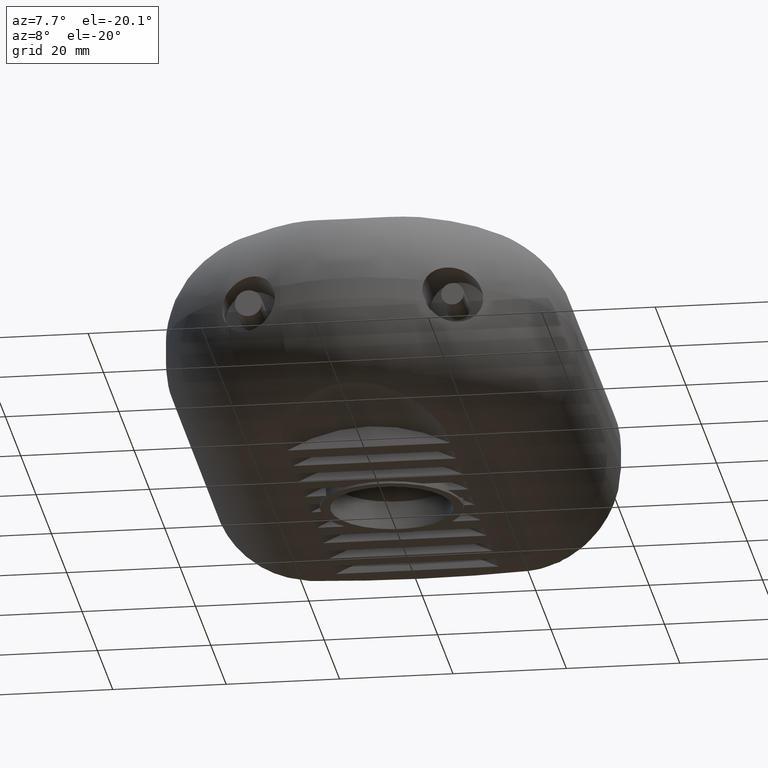
[diagram: clean part render]
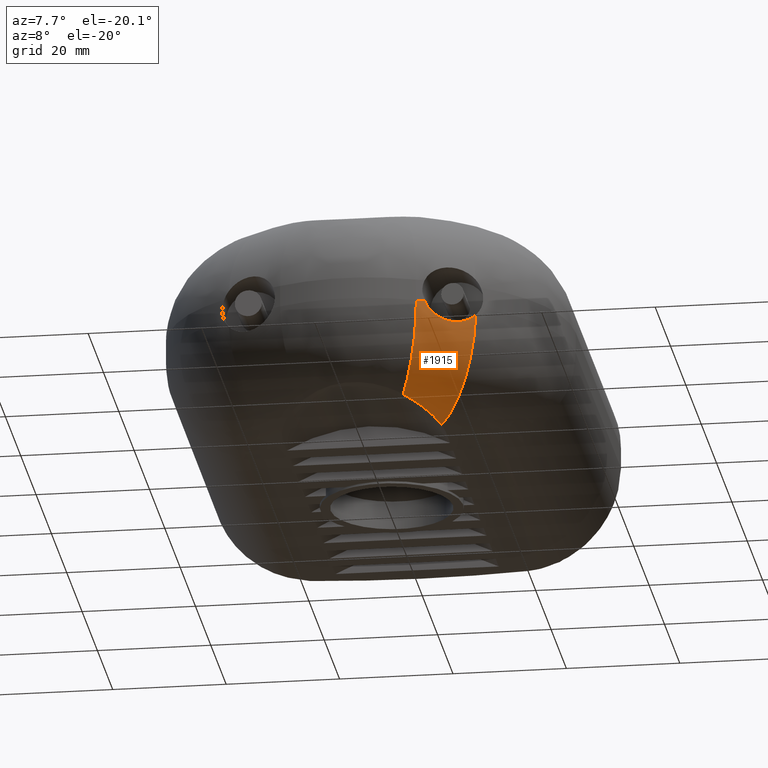
[diagram: same view with one face highlighted and labeled with its STEP entity id]
A machine part, auxiliary view. The second image highlights one B-rep face of the part: STEP entity #1915.
In plain terms, the highlighted toroidal blend (fillet) surface has major radius 66.0125 mm and minor (blend) radius 17.1 mm.
Its self-contained STEP definition (entity closure, byte-faithful):
#263=TOROIDAL_SURFACE('',#2053,66.0124539404294,17.1);
#278=B_SPLINE_CURVE_WITH_KNOTS('',3,(#2909,#2910,#2911,#2912,#2913,#2914,
#2915,#2916,#2917,#2918,#2919,#2920,#2921,#2922,#2923,#2924,#2925,#2926,
#2927,#2928),.UNSPECIFIED.,.F.,.F.,(4,2,2,2,2,2,2,2,2,4),(-1.11858976839603,
-1.06425148318787,-0.846457779540442,-0.739759309274905,-0.672366721996046,
-0.611871602706458,-0.537493364815082,-0.408214513713531,-0.184261174743674,
0.),.UNSPECIFIED.);
#289=B_SPLINE_CURVE_WITH_KNOTS('',3,(#3061,#3062,#3063,#3064,#3065,#3066,
#3067,#3068),.UNSPECIFIED.,.F.,.F.,(4,2,2,4),(-1.23276655012757,-1.05947487721175,
-0.471021003497796,-0.196050199045255),.UNSPECIFIED.);
#426=FACE_OUTER_BOUND('',#559,.T.);
#559=EDGE_LOOP('',(#1324,#1325,#1326,#1327,#1328));
#712=CIRCLE('',#2049,17.1);
#716=CIRCLE('',#2054,83.1124539404294);
#717=CIRCLE('',#2055,17.1);
#828=VERTEX_POINT('',#2896);
#829=VERTEX_POINT('',#2908);
#840=VERTEX_POINT('',#3042);
#844=VERTEX_POINT('',#3057);
#845=VERTEX_POINT('',#3059);
#1018=EDGE_CURVE('',#829,#828,#278,.T.);
#1030=EDGE_CURVE('',#829,#840,#712,.T.);
#1035=EDGE_CURVE('',#828,#844,#716,.T.);
#1036=EDGE_CURVE('',#844,#845,#717,.T.);
#1037=EDGE_CURVE('',#845,#840,#289,.T.);
#1324=ORIENTED_EDGE('',*,*,#1018,.T.);
#1325=ORIENTED_EDGE('',*,*,#1035,.T.);
#1326=ORIENTED_EDGE('',*,*,#1036,.T.);
#1327=ORIENTED_EDGE('',*,*,#1037,.T.);
#1328=ORIENTED_EDGE('',*,*,#1030,.F.);
#1915=ADVANCED_FACE('',(#426),#263,.T.);
#2049=AXIS2_PLACEMENT_3D('',#3043,#2298,#2299);
#2053=AXIS2_PLACEMENT_3D('',#3056,#2306,#2307);
#2054=AXIS2_PLACEMENT_3D('',#3058,#2308,#2309);
#2055=AXIS2_PLACEMENT_3D('',#3060,#2310,#2311);
#2298=DIRECTION('center_axis',(0.85273113340659,0.522350087698961,0.));
#2299=DIRECTION('ref_axis',(0.522350087698961,-0.85273113340659,0.));
#2306=DIRECTION('center_axis',(0.,0.,-1.));
#2307=DIRECTION('ref_axis',(-1.,0.,0.));
#2308=DIRECTION('center_axis',(0.,0.,-1.));
#2309=DIRECTION('ref_axis',(0.464405911969178,-0.885622464105375,0.));
#2310=DIRECTION('center_axis',(0.914582191541982,0.40440006789597,0.));
#2311=DIRECTION('ref_axis',(0.40440006789597,-0.914582191541982,0.));
#2896=CARTESIAN_POINT('',(13.3750675680612,-15.9951235068261,-1.9));
#2908=CARTESIAN_POINT('',(21.7852181046188,-11.4259213096276,-3.26682168176748));
#2909=CARTESIAN_POINT('Ctrl Pts',(21.7852181046188,-11.4259213096276,-3.26682168176748));
#2910=CARTESIAN_POINT('Ctrl Pts',(21.67290687162,-11.4824815663482,-3.39695505111291));
#2911=CARTESIAN_POINT('Ctrl Pts',(21.5542214473318,-11.5414366857651,-3.52090510911396));
#2912=CARTESIAN_POINT('Ctrl Pts',(20.9308393490826,-11.849010205869,-4.10856262389107));
#2913=CARTESIAN_POINT('Ctrl Pts',(20.3516504759721,-12.1293497855697,-4.4614692536352));
#2914=CARTESIAN_POINT('Ctrl Pts',(19.4299369571963,-12.594662704932,-4.80204915340734));
#2915=CARTESIAN_POINT('Ctrl Pts',(19.119498950048,-12.7541056313026,-4.883390151523));
#2916=CARTESIAN_POINT('Ctrl Pts',(18.6083123749636,-13.0224672127697,-4.96690649860775));
#2917=CARTESIAN_POINT('Ctrl Pts',(18.4095206461384,-13.1282186525439,-4.98716526273653));
#2918=CARTESIAN_POINT('Ctrl Pts',(18.0325883822675,-13.3314724191863,-5.00307765860264));
#2919=CARTESIAN_POINT('Ctrl Pts',(17.8544759090276,-13.4286771199909,-5.00103448791392));
#2920=CARTESIAN_POINT('Ctrl Pts',(17.4594599479176,-13.6467583012556,-4.97548675973067));
#2921=CARTESIAN_POINT('Ctrl Pts',(17.2430280554527,-13.7679557580983,-4.94716367197505));
#2922=CARTESIAN_POINT('Ctrl Pts',(16.6580204715363,-14.0996621543037,-4.83139689560777));
#2923=CARTESIAN_POINT('Ctrl Pts',(16.294657862008,-14.310363635163,-4.71566573279501));
#2924=CARTESIAN_POINT('Ctrl Pts',(15.343732513334,-14.869023978163,-4.28736144363128));
#2925=CARTESIAN_POINT('Ctrl Pts',(14.7843387662842,-15.206438019303,-3.89143044074796));
#2926=CARTESIAN_POINT('Ctrl Pts',(13.9276749306342,-15.7072707887132,-2.95695986970184));
#2927=CARTESIAN_POINT('Ctrl Pts',(13.6049211362663,-15.8884966627437,-2.45950380115198));
#2928=CARTESIAN_POINT('Ctrl Pts',(13.3750675680611,-15.9951235068261,-1.90000000000001));
#3042=CARTESIAN_POINT('',(14.109828413902,1.10407323700713,-18.8375691389521));
#3043=CARTESIAN_POINT('Origin',(12.8816111050069,3.1091253324273,-1.9));
#3056=CARTESIAN_POINT('Origin',(-21.6,59.4,-1.9));
#3057=CARTESIAN_POINT('',(12.0106820165103,-16.61317026927,-1.9));
#3058=CARTESIAN_POINT('Origin',(-21.6,59.4,-1.9));
#3059=CARTESIAN_POINT('',(8.68145022566371,-9.08385376033458,-16.521142389019));
#3060=CARTESIAN_POINT('Origin',(5.09544085548923,-0.973814793902083,-1.9));
#3061=CARTESIAN_POINT('Ctrl Pts',(8.6814502256637,-9.08385376033457,-16.521142389019));
#3062=CARTESIAN_POINT('Ctrl Pts',(9.14575633609158,-8.61774078104111,-16.6658088115138));
#3063=CARTESIAN_POINT('Ctrl Pts',(9.5867196507666,-8.12947122180272,-16.8159477872865));
#3064=CARTESIAN_POINT('Ctrl Pts',(11.4156659902136,-5.8921930410599,-17.4832319429274));
#3065=CARTESIAN_POINT('Ctrl Pts',(12.5363527506666,-3.93164079162727,-18.0156676072129));
#3066=CARTESIAN_POINT('Ctrl Pts',(13.6613500412358,-0.835064330786453,-18.5918146641325));
#3067=CARTESIAN_POINT('Ctrl Pts',(13.9283976772822,0.146441165159463,-18.7373619718377));
#3068=CARTESIAN_POINT('Ctrl Pts',(14.109828413902,1.10407323700714,-18.8375691389521));